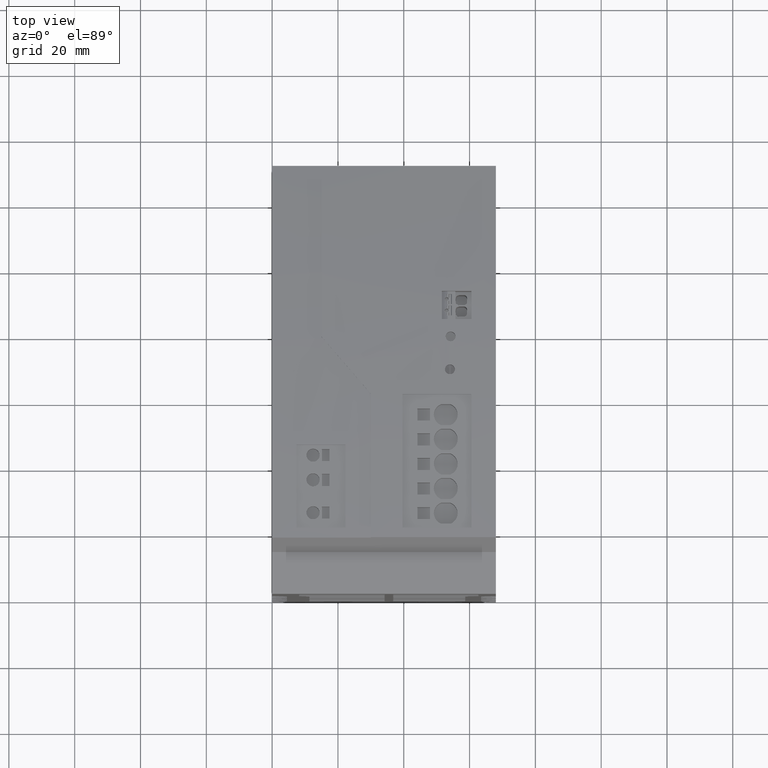
[diagram: clean part render]
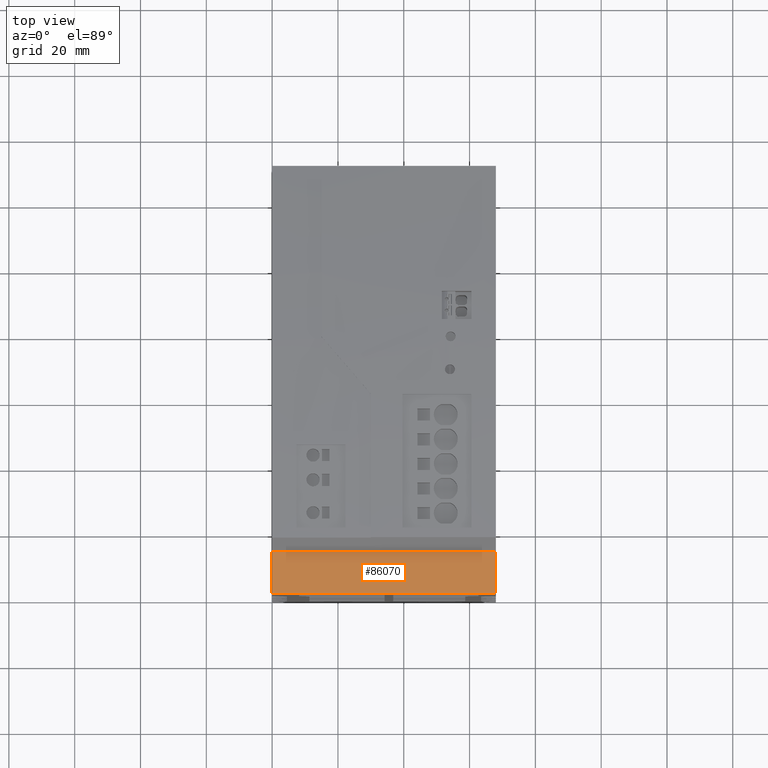
[diagram: same view with one face highlighted and labeled with its STEP entity id]
A machine part, top view. The second image highlights one B-rep face of the part: STEP entity #86070.
In plain terms, the highlighted cylindrical surface (partial cylindrical patch) has radius 75 mm, axis along (1, 0, 0).
Its self-contained STEP definition (entity closure, byte-faithful):
#1090=CARTESIAN_POINT('',(152.380000000004,12.6005909487721,4.5));
#1100=VERTEX_POINT('',#1090);
#1130=CARTESIAN_POINT('',(78.52535719996,25.65783939084,4.5));
#1140=DIRECTION('',(0.,0.,-1.));
#1150=DIRECTION('',(-1.,0.,0.));
#1160=AXIS2_PLACEMENT_3D('',#1130,#1140,#1150);
#1170=CIRCLE('',#1160,75.);
#1180=CARTESIAN_POINT('',(149.000000000004,0.,4.5));
#1190=VERTEX_POINT('',#1180);
#1200=EDGE_CURVE('',#1100,#1190,#1170,.T.);
#36630=CARTESIAN_POINT('',(149.000000000004,0.,-63.5));
#36640=VERTEX_POINT('',#36630);
#36670=CARTESIAN_POINT('',(78.52535719996,25.65783939084,-63.5));
#36680=DIRECTION('',(0.,0.,-1.));
#36690=DIRECTION('',(-1.,0.,0.));
#36700=AXIS2_PLACEMENT_3D('',#36670,#36680,#36690);
#36710=CIRCLE('',#36700,75.);
#36720=CARTESIAN_POINT('',(152.380000000004,12.6005909487721,-63.5));
#36730=VERTEX_POINT('',#36720);
#36740=EDGE_CURVE('',#36730,#36640,#36710,.T.);
#85860=CARTESIAN_POINT('',(78.52535719996,25.65783939084,-70.3000024));
#85870=DIRECTION('',(0.,0.,-1.));
#85880=DIRECTION('',(-1.,0.,0.));
#85890=AXIS2_PLACEMENT_3D('',#85860,#85870,#85880);
#85900=CYLINDRICAL_SURFACE('',#85890,75.);
#85910=CARTESIAN_POINT('',(149.000000000004,0.,-70.3000024));
#85920=DIRECTION('',(0.,0.,-1.));
#85930=VECTOR('',#85920,1.);
#85940=LINE('',#85910,#85930);
#85950=EDGE_CURVE('',#1190,#36640,#85940,.T.);
#85960=ORIENTED_EDGE('',*,*,#85950,.T.);
#85970=ORIENTED_EDGE('',*,*,#1200,.T.);
#85980=CARTESIAN_POINT('',(152.380000000004,12.6005909487721,-70.3000024
));
#85990=DIRECTION('',(0.,0.,1.));
#86000=VECTOR('',#85990,1.);
#86010=LINE('',#85980,#86000);
#86020=EDGE_CURVE('',#36730,#1100,#86010,.T.);
#86030=ORIENTED_EDGE('',*,*,#86020,.T.);
#86040=ORIENTED_EDGE('',*,*,#36740,.F.);
#86050=EDGE_LOOP('',(#86040,#86030,#85970,#85960));
#86060=FACE_OUTER_BOUND('',#86050,.T.);
#86070=ADVANCED_FACE('',(#86060),#85900,.T.);